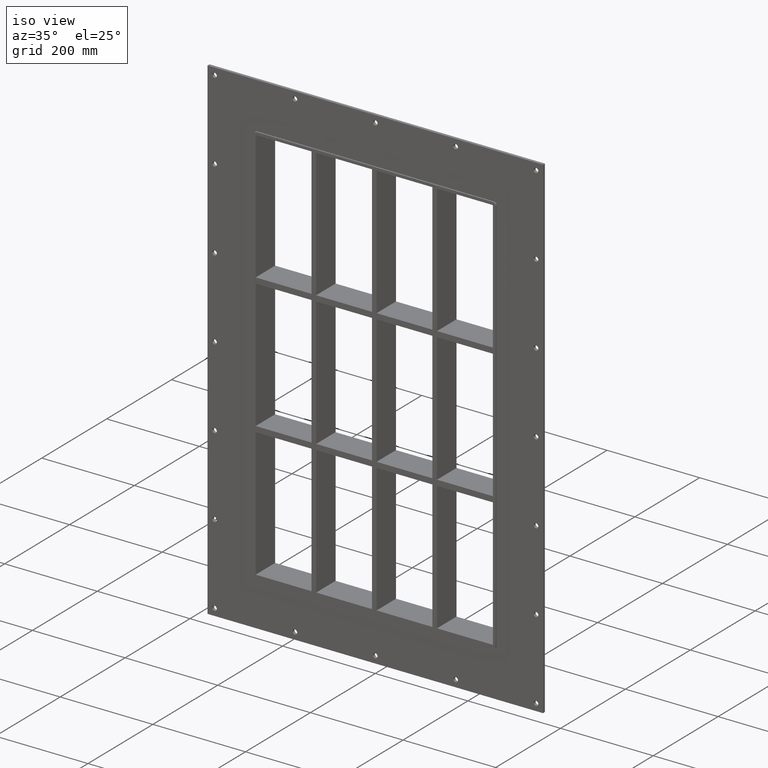
[diagram: clean part render]
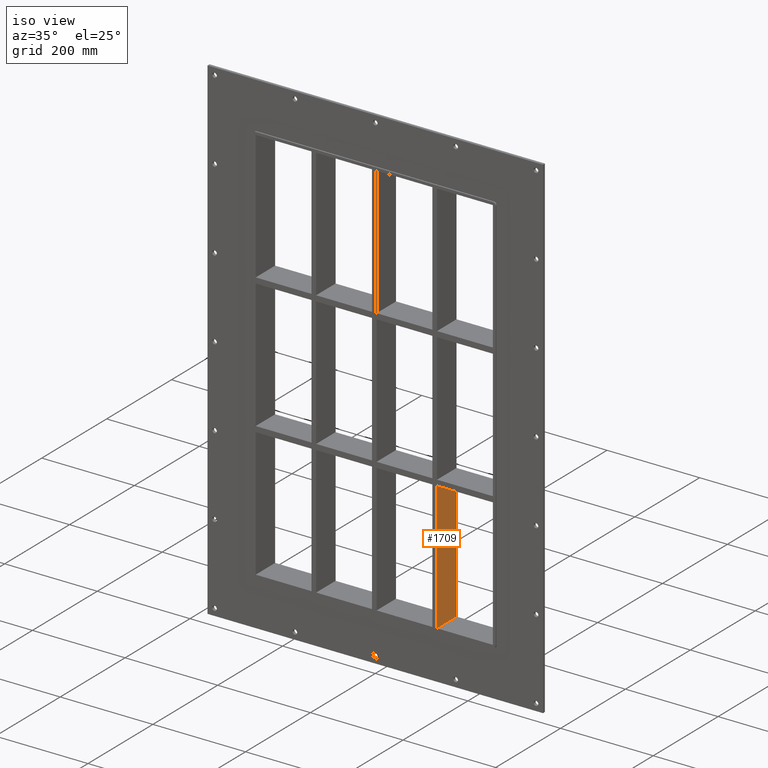
[diagram: same view with one face highlighted and labeled with its STEP entity id]
A machine part, iso view. The second image highlights one B-rep face of the part: STEP entity #1709.
In plain terms, the highlighted planar face has unit normal (1, 0, 0).
Its self-contained STEP definition (entity closure, byte-faithful):
#1565=CARTESIAN_POINT('',(135.50000000000728,57.0,-428.99999999998431));
#1566=VERTEX_POINT('',#1565);
#1583=CARTESIAN_POINT('',(135.50000000000728,57.0,-151.00000000000932));
#1584=VERTEX_POINT('',#1583);
#1591=CARTESIAN_POINT('',(135.50000000000728,57.0,-151.00000000000927));
#1592=DIRECTION('',(0.0,0.0,-1.0));
#1593=VECTOR('',#1592,277.99999999997499);
#1594=LINE('',#1591,#1593);
#1595=EDGE_CURVE('',#1584,#1566,#1594,.T.);
#1679=CARTESIAN_POINT('',(135.50000000000728,-3.0,429.00000000000006));
#1680=DIRECTION('',(1.0,0.0,0.0));
#1681=DIRECTION('',(0.0,0.0,-1.0));
#1682=AXIS2_PLACEMENT_3D('',#1679,#1680,#1681);
#1683=PLANE('',#1682);
#1684=CARTESIAN_POINT('',(135.50000000000728,-3.0,-151.00000000000932));
#1685=VERTEX_POINT('',#1684);
#1686=CARTESIAN_POINT('',(135.50000000000728,-3.0,-151.00000000000929));
#1687=DIRECTION('',(0.0,1.0,0.0));
#1688=VECTOR('',#1687,60.0);
#1689=LINE('',#1686,#1688);
#1690=EDGE_CURVE('',#1685,#1584,#1689,.T.);
#1691=ORIENTED_EDGE('',*,*,#1690,.F.);
#1692=CARTESIAN_POINT('',(135.50000000000728,-3.0,-428.99999999998431));
#1693=VERTEX_POINT('',#1692);
#1694=CARTESIAN_POINT('',(135.50000000000728,-3.0,-151.00000000000927));
#1695=DIRECTION('',(0.0,0.0,-1.0));
#1696=VECTOR('',#1695,277.99999999997499);
#1697=LINE('',#1694,#1696);
#1698=EDGE_CURVE('',#1685,#1693,#1697,.T.);
#1699=ORIENTED_EDGE('',*,*,#1698,.T.);
#1700=CARTESIAN_POINT('',(135.50000000000728,57.000000000000007,-429.00000000000006));
#1701=DIRECTION('',(0.0,-1.0,0.0));
#1702=VECTOR('',#1701,60.000000000000007);
#1703=LINE('',#1700,#1702);
#1704=EDGE_CURVE('',#1566,#1693,#1703,.T.);
#1705=ORIENTED_EDGE('',*,*,#1704,.F.);
#1706=ORIENTED_EDGE('',*,*,#1595,.F.);
#1707=EDGE_LOOP('',(#1691,#1699,#1705,#1706));
#1708=FACE_OUTER_BOUND('',#1707,.T.);
#1709=ADVANCED_FACE('',(#1708),#1683,.T.);